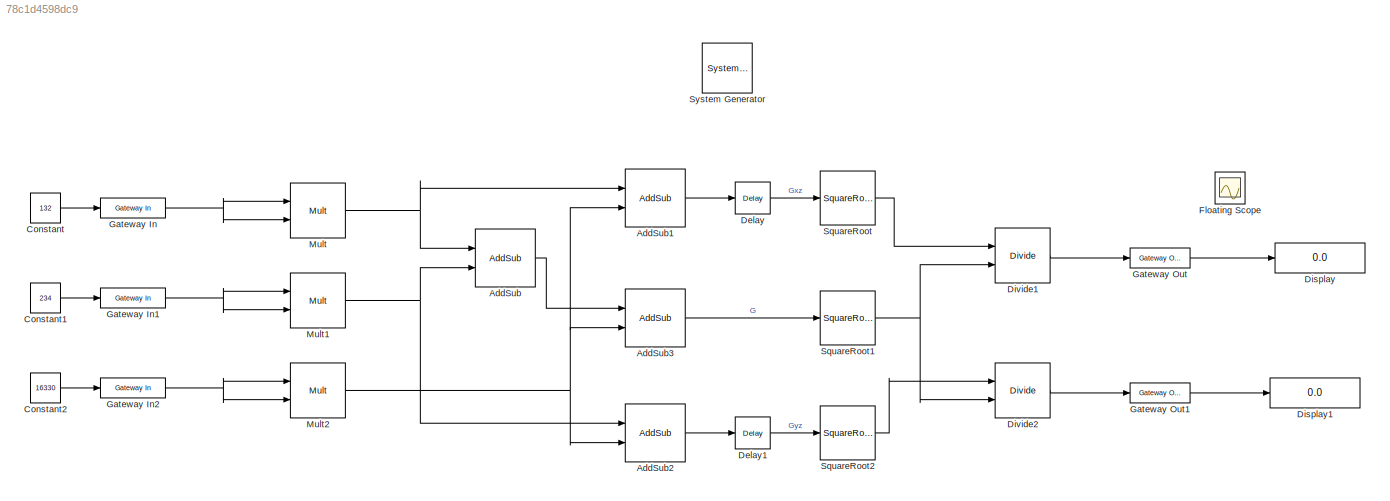
MODEL slx_78c1d4598dc9
KIND model
CONFIG AbsTol = auto
CONFIG EnableMultiTasking = off
CONFIG FixedStep = auto
CONFIG MaxStep = auto
CONFIG MinStep = auto
CONFIG RelTol = 1e-3
CONFIG SampleTimeConstraint = Unconstrained
CONFIG SolverName = VariableStepAuto
CONFIG StartTime = 0.0
CONFIG StopTime = 10.0
BLOCK [Reference]  System Generator  REF=xbsIndex_r4/ System Generator
  AttributesFormatString = System\nGenerator
  Ports = []
  SourceBlock = xbsIndex_r4/ System Generator
  SourceType = Xilinx System Generator Block
  Tag = genX
  UserDataPersistent = on
BLOCK [Reference] AddSub  REF=xbsIndex_r4/AddSub
  Ports = [2, 1]
  SourceBlock = xbsIndex_r4/AddSub
  SourceType = Xilinx Adder/Subtracter Block
BLOCK [Reference] AddSub1  REF=xbsIndex_r4/AddSub
  Ports = [2, 1]
  SourceBlock = xbsIndex_r4/AddSub
  SourceType = Xilinx Adder/Subtracter Block
BLOCK [Reference] AddSub2  REF=xbsIndex_r4/AddSub
  Ports = [2, 1]
  SourceBlock = xbsIndex_r4/AddSub
  SourceType = Xilinx Adder/Subtracter Block
BLOCK [Reference] AddSub3  REF=xbsIndex_r4/AddSub
  Ports = [2, 1]
  SourceBlock = xbsIndex_r4/AddSub
  SourceType = Xilinx Adder/Subtracter Block
BLOCK [Constant] Constant
  Value = 132
BLOCK [Constant] Constant1
  Value = 234
BLOCK [Constant] Constant2
  Value = 16330
BLOCK [Reference] Delay  REF=xbsIndex_r4/Delay
  Ports = [1, 1]
  SourceBlock = xbsIndex_r4/Delay
  SourceType = Xilinx Delay Block
BLOCK [Reference] Delay1  REF=xbsIndex_r4/Delay
  Ports = [1, 1]
  SourceBlock = xbsIndex_r4/Delay
  SourceType = Xilinx Delay Block
BLOCK [Display] Display
  Decimation = 1
  Ports = [1]
BLOCK [Display] Display1
  Decimation = 1
  Ports = [1]
BLOCK [Reference] Divide1  REF=xbsIndex_r4/Divide
  Ports = [2, 1]
  SourceBlock = xbsIndex_r4/Divide
  SourceType = Xilinx Divider Block
BLOCK [Reference] Divide2  REF=xbsIndex_r4/Divide
  Ports = [2, 1]
  SourceBlock = xbsIndex_r4/Divide
  SourceType = Xilinx Divider Block
BLOCK [Scope] Floating Scope
  Floating = on
  NumInputPorts = 1
  Ports = []
  ScopeSpecificationString = Simulink.scopes.TimeScopeBlockCfg('CurrentConfiguration', extmgr.ConfigurationSet(extmgr.Configuration('Core','General UI',true),extmgr.Configuration('Core','Source UI',true),extmgr.Configuration('Sources','WiredSimulink',true),extmgr.Configuration('Visuals','Time Domain',true),extmgr.Configuration('Tools','Plot Navigation',true,'PreviousZoomMode','ZoomY'),extmgr.Configuration('Tools','Measurement...<+46ch>
BLOCK [Reference] Gateway In  REF=xbsIndex_r4/Gateway In
  Ports = [1, 1]
  SourceBlock = xbsIndex_r4/Gateway In
  SourceType = Xilinx Gateway In Block
BLOCK [Reference] Gateway In1  REF=xbsIndex_r4/Gateway In
  Ports = [1, 1]
  SourceBlock = xbsIndex_r4/Gateway In
  SourceType = Xilinx Gateway In Block
BLOCK [Reference] Gateway In2  REF=xbsIndex_r4/Gateway In
  Ports = [1, 1]
  SourceBlock = xbsIndex_r4/Gateway In
  SourceType = Xilinx Gateway In Block
BLOCK [Reference] Gateway Out  REF=xbsIndex_r4/Gateway Out
  Ports = [1, 1]
  SourceBlock = xbsIndex_r4/Gateway Out
  SourceType = Xilinx Gateway Out Block
BLOCK [Reference] Gateway Out1  REF=xbsIndex_r4/Gateway Out
  Ports = [1, 1]
  SourceBlock = xbsIndex_r4/Gateway Out
  SourceType = Xilinx Gateway Out Block
BLOCK [Reference] Mult  REF=xbsIndex_r4/Mult
  Ports = [2, 1]
  SourceBlock = xbsIndex_r4/Mult
  SourceType = Xilinx Multiplier Block
BLOCK [Reference] Mult1  REF=xbsIndex_r4/Mult
  Ports = [2, 1]
  SourceBlock = xbsIndex_r4/Mult
  SourceType = Xilinx Multiplier Block
BLOCK [Reference] Mult2  REF=xbsIndex_r4/Mult
  Ports = [2, 1]
  SourceBlock = xbsIndex_r4/Mult
  SourceType = Xilinx Multiplier Block
BLOCK [Reference] SquareRoot  REF=xbsIndex_r4/SquareRoot
  Ports = [1, 1]
  SourceBlock = xbsIndex_r4/SquareRoot
  SourceType = Xilinx Square-Root Block
BLOCK [Reference] SquareRoot1  REF=xbsIndex_r4/SquareRoot
  Ports = [1, 1]
  SourceBlock = xbsIndex_r4/SquareRoot
  SourceType = Xilinx Square-Root Block
BLOCK [Reference] SquareRoot2  REF=xbsIndex_r4/SquareRoot
  Ports = [1, 1]
  SourceBlock = xbsIndex_r4/SquareRoot
  SourceType = Xilinx Square-Root Block
LINE AddSub1:1 -> Delay:1
LINE AddSub2:1 -> Delay1:1
LINE AddSub3:1 -> SquareRoot1:1
LINE AddSub:1 -> AddSub3:1
LINE Constant1:1 -> Gateway In1:1
LINE Constant2:1 -> Gateway In2:1
LINE Constant:1 -> Gateway In:1
LINE Delay1:1 -> SquareRoot2:1
LINE Delay:1 -> SquareRoot:1
LINE Divide1:1 -> Gateway Out:1
LINE Divide2:1 -> Gateway Out1:1
NET Gateway In1:1 -> Mult1:1, Mult1:2
NET Gateway In2:1 -> Mult2:1, Mult2:2
NET Gateway In:1 -> Mult:1, Mult:2
LINE Gateway Out1:1 -> Display1:1
LINE Gateway Out:1 -> Display:1
NET Mult1:1 -> AddSub2:1, AddSub:2
NET Mult2:1 -> AddSub1:2, AddSub2:2, AddSub3:2
NET Mult:1 -> AddSub1:1, AddSub:1
NET SquareRoot1:1 -> Divide1:2, Divide2:2
LINE SquareRoot2:1 -> Divide2:1
LINE SquareRoot:1 -> Divide1:1
note: NET lines group one-source signal fan-out (src -> all destinations, sorted); 1:1 wires keep LINE
